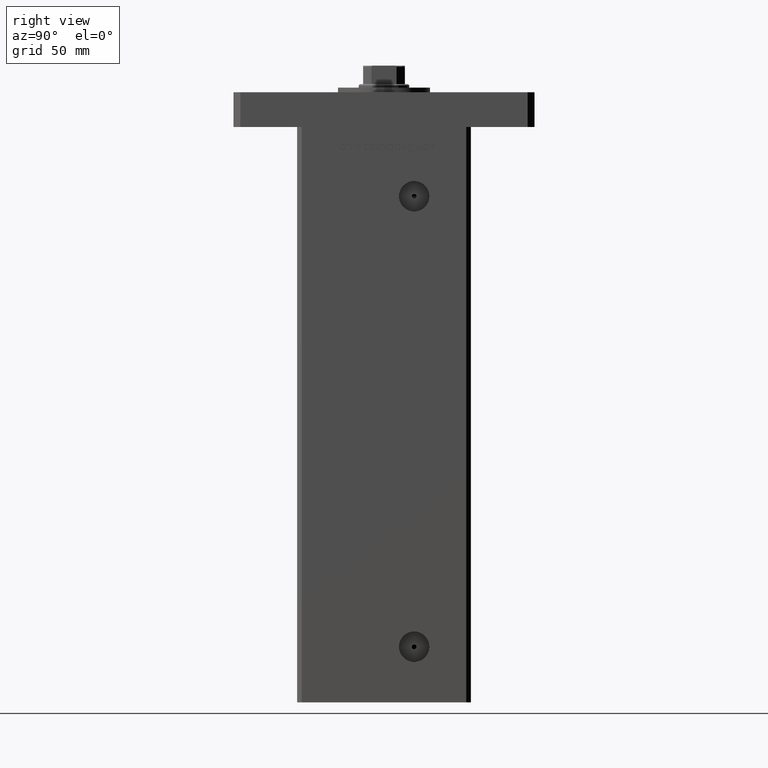
[diagram: clean part render]
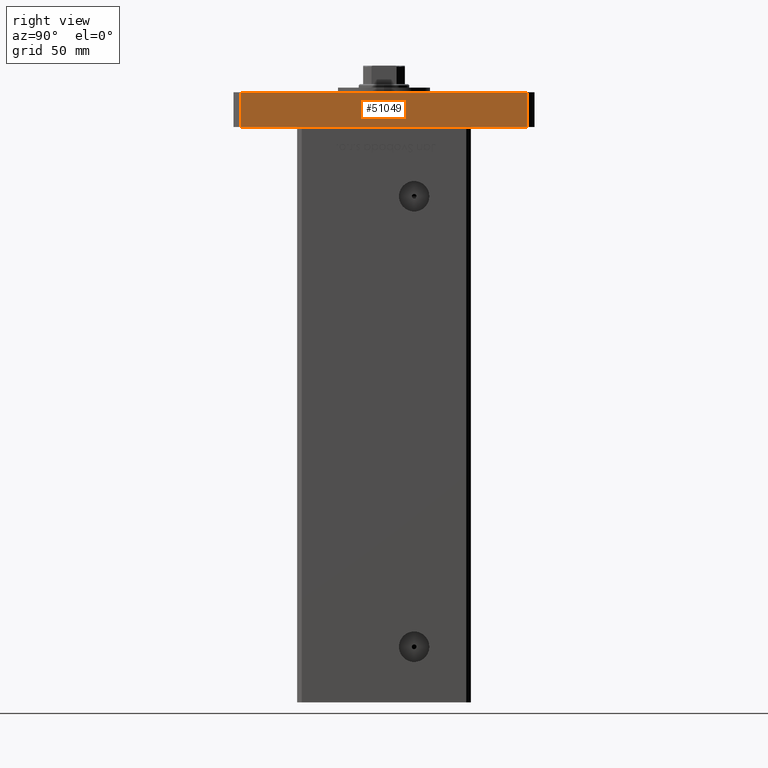
[diagram: same view with one face highlighted and labeled with its STEP entity id]
A machine part, right view. The second image highlights one B-rep face of the part: STEP entity #51049.
In plain terms, the highlighted planar face has unit normal (-1, 0, 0).
Its self-contained STEP definition (entity closure, byte-faithful):
#389 = DIRECTION ( 'NONE',  ( -0.000000000000000000, -0.000000000000000000, -1.000000000000000000 ) ) ;
#2396 = LINE ( 'NONE', #26788, #32355 ) ;
#3961 = AXIS2_PLACEMENT_3D ( 'NONE', #50566, #13173, #42187 ) ;
#4819 = CARTESIAN_POINT ( 'NONE',  ( 42.50000000000000000, 62.00000000000000711, 15.00000000000000000 ) ) ;
#8225 = VECTOR ( 'NONE', #389, 1000.000000000000000 ) ;
#10229 = CARTESIAN_POINT ( 'NONE',  ( 42.50000000000000000, -61.99999999999988631, 15.00000000000000000 ) ) ;
#10407 = ORIENTED_EDGE ( 'NONE', *, *, #26741, .F. ) ;
#13117 = CARTESIAN_POINT ( 'NONE',  ( 42.50000000000000000, -61.99999999999988631, 15.00000000000000000 ) ) ;
#13173 = DIRECTION ( 'NONE',  ( -1.000000000000000000, 0.000000000000000000, 0.000000000000000000 ) ) ;
#14266 = VERTEX_POINT ( 'NONE', #30527 ) ;
#16289 = VERTEX_POINT ( 'NONE', #40136 ) ;
#16796 = LINE ( 'NONE', #24935, #51559 ) ;
#19149 = LINE ( 'NONE', #10229, #29674 ) ;
#20647 = VERTEX_POINT ( 'NONE', #48124 ) ;
#23788 = ORIENTED_EDGE ( 'NONE', *, *, #38091, .T. ) ;
#24256 = VERTEX_POINT ( 'NONE', #4819 ) ;
#24935 = CARTESIAN_POINT ( 'NONE',  ( 42.50000000000000000, -61.99999999999988631, 0.000000000000000000 ) ) ;
#25582 = LINE ( 'NONE', #13117, #8225 ) ;
#26741 = EDGE_CURVE ( 'NONE', #14266, #24256, #19149, .T. ) ;
#26788 = CARTESIAN_POINT ( 'NONE',  ( 42.50000000000000000, 62.00000000000000711, 15.00000000000000000 ) ) ;
#29674 = VECTOR ( 'NONE', #35407, 1000.000000000000000 ) ;
#30527 = CARTESIAN_POINT ( 'NONE',  ( 42.50000000000000000, -61.99999999999988631, 15.00000000000000000 ) ) ;
#32355 = VECTOR ( 'NONE', #35451, 1000.000000000000000 ) ;
#33756 = PLANE ( 'NONE',  #3961 ) ;
#34134 = EDGE_CURVE ( 'NONE', #24256, #16289, #2396, .T. ) ;
#35407 = DIRECTION ( 'NONE',  ( 0.000000000000000000, 1.000000000000000000, 0.000000000000000000 ) ) ;
#35451 = DIRECTION ( 'NONE',  ( -0.000000000000000000, -0.000000000000000000, -1.000000000000000000 ) ) ;
#38091 = EDGE_CURVE ( 'NONE', #14266, #20647, #25582, .T. ) ;
#40136 = CARTESIAN_POINT ( 'NONE',  ( 42.50000000000000000, 62.00000000000000711, 0.000000000000000000 ) ) ;
#40247 = EDGE_CURVE ( 'NONE', #20647, #16289, #16796, .T. ) ;
#41077 = ORIENTED_EDGE ( 'NONE', *, *, #34134, .F. ) ;
#42187 = DIRECTION ( 'NONE',  ( 0.000000000000000000, 0.000000000000000000, 1.000000000000000000 ) ) ;
#45259 = DIRECTION ( 'NONE',  ( 0.000000000000000000, 1.000000000000000000, 0.000000000000000000 ) ) ;
#48124 = CARTESIAN_POINT ( 'NONE',  ( 42.50000000000000000, -61.99999999999988631, 0.000000000000000000 ) ) ;
#49304 = FACE_OUTER_BOUND ( 'NONE', #52706, .T. ) ;
#49945 = ORIENTED_EDGE ( 'NONE', *, *, #40247, .T. ) ;
#50566 = CARTESIAN_POINT ( 'NONE',  ( 42.50000000000000000, -61.99999999999988631, 15.00000000000000000 ) ) ;
#51049 = ADVANCED_FACE ( 'NONE', ( #49304 ), #33756, .F. ) ;
#51559 = VECTOR ( 'NONE', #45259, 1000.000000000000000 ) ;
#52706 = EDGE_LOOP ( 'NONE', ( #49945, #41077, #10407, #23788 ) ) ;